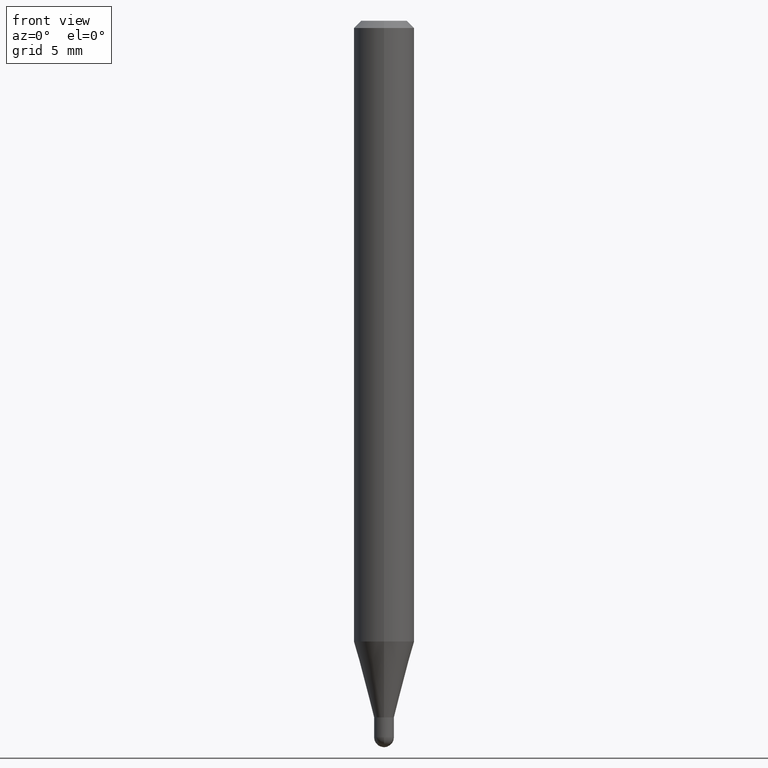
[diagram: clean part render]
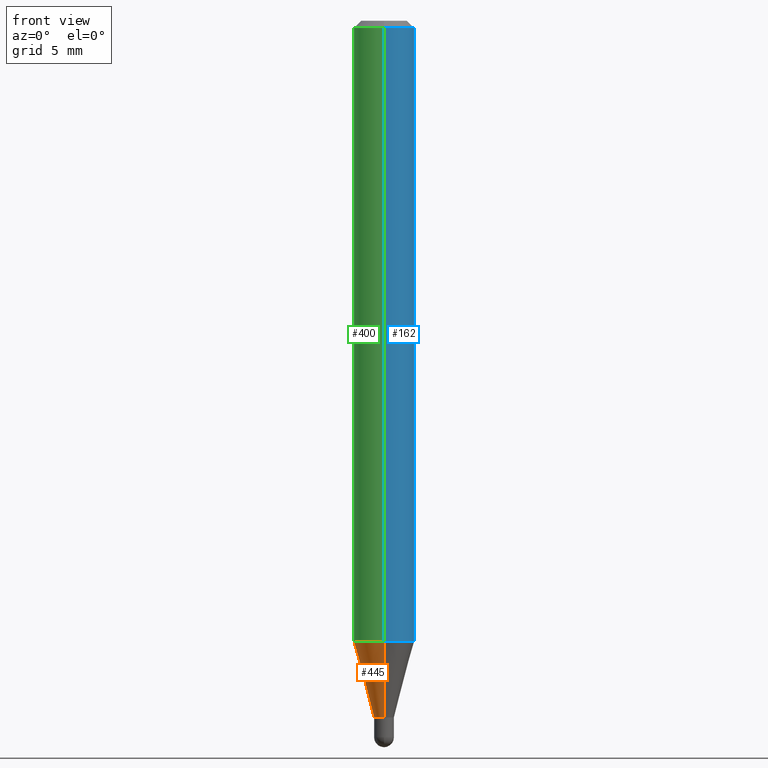
[diagram: same view with three faces highlighted in distinct colors, each labeled with its STEP entity id]
A machine part, front view with three faces highlighted in distinct colors.
Their STEP definitions:

[orange] entity #445 — the highlighted conical surface has half-angle 15 deg.
#4 = CARTESIAN_POINT ( 'NONE',  ( -1.431507348925308261E-16, -0.02050000000000467074, -1.438500000000000334 ) ) ;
#16 = EDGE_CURVE ( 'NONE', #264, #310, #357, .T. ) ;
#26 = VECTOR ( 'NONE', #317, 39.37007874015748143 ) ;
#30 = FACE_OUTER_BOUND ( 'NONE', #495, .T. ) ;
#46 = LINE ( 'NONE', #4, #486 ) ;
#48 = AXIS2_PLACEMENT_3D ( 'NONE', #155, #276, #312 ) ;
#73 = CARTESIAN_POINT ( 'NONE',  ( -4.364351673553604601E-16, -0.06250000000000449640, -1.281753866082110838 ) ) ;
#130 = CARTESIAN_POINT ( 'NONE',  ( 2.948752353404736400E-16, 0.02049999999999462322, -1.438500000000000334 ) ) ;
#149 = CARTESIAN_POINT ( 'NONE',  ( 1.456612608308531833E-16, 0.02049999999999462322, -1.438500000000000334 ) ) ;
#155 = CARTESIAN_POINT ( 'NONE',  ( 3.134478573707413274E-29, -4.475234773955820986E-15, -1.281753866082111060 ) ) ;
#156 = EDGE_CURVE ( 'NONE', #310, #341, #288, .T. ) ;
#157 = DIRECTION ( 'NONE',  ( -2.445460596337778578E-29, 3.491493095811837758E-15, 1.000000000000000000 ) ) ;
#163 = DIRECTION ( 'NONE',  ( -1.807323732225378654E-15, -0.2588190451025251249, 0.9659258262890670910 ) ) ;
#180 = ORIENTED_EDGE ( 'NONE', *, *, #183, .T. ) ;
#183 = EDGE_CURVE ( 'NONE', #339, #341, #46, .T. ) ;
#192 = CARTESIAN_POINT ( 'NONE',  ( 3.517795067831895441E-29, -5.022512818325329476E-15, -1.438500000000000334 ) ) ;
#200 = ORIENTED_EDGE ( 'NONE', *, *, #156, .F. ) ;
#260 = DIRECTION ( 'NONE',  ( -6.982962677686266711E-15, -1.000000000000000000, 0.000000000000000000 ) ) ;
#264 = VERTEX_POINT ( 'NONE', #130 ) ;
#276 = DIRECTION ( 'NONE',  ( -2.445460596337778578E-29, 3.491493095811837758E-15, 1.000000000000000000 ) ) ;
#288 = CIRCLE ( 'NONE', #48, 0.06250000000000000000 ) ;
#298 = ORIENTED_EDGE ( 'NONE', *, *, #16, .F. ) ;
#301 = ORIENTED_EDGE ( 'NONE', *, *, #505, .T. ) ;
#310 = VERTEX_POINT ( 'NONE', #483 ) ;
#312 = DIRECTION ( 'NONE',  ( -6.982962677686265922E-15, -1.000000000000000000, 4.370956789862821150E-15 ) ) ;
#317 = DIRECTION ( 'NONE',  ( 1.839019923739649619E-15, 0.2588190451025318972, 0.9659258262890653146 ) ) ;
#319 = CONICAL_SURFACE ( 'NONE', #438, 0.02049999999999964698, 0.2617993877991574569 ) ;
#339 = VERTEX_POINT ( 'NONE', #340 ) ;
#340 = CARTESIAN_POINT ( 'NONE',  ( -1.431507348925308261E-16, -0.02050000000000467074, -1.438500000000000334 ) ) ;
#341 = VERTEX_POINT ( 'NONE', #73 ) ;
#353 = AXIS2_PLACEMENT_3D ( 'NONE', #192, #157, #428 ) ;
#357 = LINE ( 'NONE', #149, #26 ) ;
#376 = CARTESIAN_POINT ( 'NONE',  ( 3.517795067831895441E-29, -5.022512818325329476E-15, -1.438500000000000334 ) ) ;
#380 = DIRECTION ( 'NONE',  ( -2.445460596337778578E-29, 3.491493095811837758E-15, 1.000000000000000000 ) ) ;
#428 = DIRECTION ( 'NONE',  ( -6.982962677686266711E-15, -1.000000000000000000, 0.000000000000000000 ) ) ;
#438 = AXIS2_PLACEMENT_3D ( 'NONE', #376, #380, #260 ) ;
#445 = ADVANCED_FACE ( 'NONE', ( #30 ), #319, .T. ) ;
#478 = CIRCLE ( 'NONE', #353, 0.02049999999999964698 ) ;
#483 = CARTESIAN_POINT ( 'NONE',  ( 4.440892098500937762E-16, 0.06249999999999551054, -1.281753866082111282 ) ) ;
#486 = VECTOR ( 'NONE', #163, 39.37007874015748854 ) ;
#495 = EDGE_LOOP ( 'NONE', ( #298, #301, #180, #200 ) ) ;
#505 = EDGE_CURVE ( 'NONE', #264, #339, #478, .T. ) ;

[blue] entity #162 — the highlighted cylindrical surface (edge-blend (fillet) strip) has radius 1.5875 mm, axis along (-0, 0, 1).
#7 = EDGE_CURVE ( 'NONE', #341, #164, #79, .T. ) ;
#29 = EDGE_CURVE ( 'NONE', #310, #184, #84, .T. ) ;
#73 = CARTESIAN_POINT ( 'NONE',  ( -4.364351673553604601E-16, -0.06250000000000449640, -1.281753866082110838 ) ) ;
#79 = LINE ( 'NONE', #158, #250 ) ;
#84 = LINE ( 'NONE', #470, #131 ) ;
#93 = DIRECTION ( 'NONE',  ( -2.445460596337778578E-29, 3.491493095811837758E-15, 1.000000000000000000 ) ) ;
#122 = CARTESIAN_POINT ( 'NONE',  ( 4.440892098500940720E-16, 0.06249999999999993755, -0.01500000000000028394 ) ) ;
#128 = CARTESIAN_POINT ( 'NONE',  ( 3.134478573707413274E-29, -4.475234773955820986E-15, -1.281753866082111060 ) ) ;
#131 = VECTOR ( 'NONE', #234, 39.37007874015748143 ) ;
#158 = CARTESIAN_POINT ( 'NONE',  ( -4.364351673553916201E-16, -0.06250000000000000000, 2.182183184882398598E-16 ) ) ;
#162 = ADVANCED_FACE ( 'NONE', ( #433 ), #239, .T. ) ;
#164 = VERTEX_POINT ( 'NONE', #394 ) ;
#184 = VERTEX_POINT ( 'NONE', #122 ) ;
#187 = CIRCLE ( 'NONE', #363, 0.06250000000000000000 ) ;
#202 = DIRECTION ( 'NONE',  ( -2.445460596337778578E-29, 3.491493095811837758E-15, 1.000000000000000000 ) ) ;
#208 = DIRECTION ( 'NONE',  ( -6.982962677686265922E-15, -1.000000000000000000, 3.491493095811837758E-15 ) ) ;
#214 = CIRCLE ( 'NONE', #343, 0.06250000000000000000 ) ;
#234 = DIRECTION ( 'NONE',  ( -2.445460596337778578E-29, 3.491493095811837758E-15, 1.000000000000000000 ) ) ;
#239 = CYLINDRICAL_SURFACE ( 'NONE', #501, 0.06250000000000000000 ) ;
#249 = EDGE_CURVE ( 'NONE', #341, #310, #214, .T. ) ;
#250 = VECTOR ( 'NONE', #202, 39.37007874015748143 ) ;
#263 = CARTESIAN_POINT ( 'NONE',  ( 3.668190894506684298E-31, -5.237239643717779809E-17, -0.01500000000000006710 ) ) ;
#302 = DIRECTION ( 'NONE',  ( -6.982962677686265922E-15, -1.000000000000000000, 3.483106191921935554E-15 ) ) ;
#310 = VERTEX_POINT ( 'NONE', #483 ) ;
#341 = VERTEX_POINT ( 'NONE', #73 ) ;
#343 = AXIS2_PLACEMENT_3D ( 'NONE', #128, #93, #444 ) ;
#350 = ORIENTED_EDGE ( 'NONE', *, *, #249, .T. ) ;
#363 = AXIS2_PLACEMENT_3D ( 'NONE', #263, #418, #302 ) ;
#381 = ORIENTED_EDGE ( 'NONE', *, *, #29, .T. ) ;
#394 = CARTESIAN_POINT ( 'NONE',  ( -4.364351673553912750E-16, -0.06250000000000005551, -0.01499999999999984852 ) ) ;
#418 = DIRECTION ( 'NONE',  ( -2.445460596337778578E-29, 3.491493095811837758E-15, 1.000000000000000000 ) ) ;
#430 = DIRECTION ( 'NONE',  ( -2.445460596337778578E-29, 3.491493095811837758E-15, 1.000000000000000000 ) ) ;
#433 = FACE_OUTER_BOUND ( 'NONE', #500, .T. ) ;
#444 = DIRECTION ( 'NONE',  ( -6.982962677686265922E-15, -1.000000000000000000, 4.370956789862821150E-15 ) ) ;
#453 = EDGE_CURVE ( 'NONE', #164, #184, #187, .T. ) ;
#459 = ORIENTED_EDGE ( 'NONE', *, *, #453, .F. ) ;
#467 = CARTESIAN_POINT ( 'NONE',  ( 0.000000000000000000, 0.000000000000000000, 0.000000000000000000 ) ) ;
#470 = CARTESIAN_POINT ( 'NONE',  ( 4.440892098500625669E-16, 0.06250000000000000000, -2.182183184882398598E-16 ) ) ;
#483 = CARTESIAN_POINT ( 'NONE',  ( 4.440892098500937762E-16, 0.06249999999999551054, -1.281753866082111282 ) ) ;
#493 = ORIENTED_EDGE ( 'NONE', *, *, #7, .F. ) ;
#500 = EDGE_LOOP ( 'NONE', ( #350, #381, #459, #493 ) ) ;
#501 = AXIS2_PLACEMENT_3D ( 'NONE', #467, #430, #208 ) ;

[green] entity #400 — the highlighted cylindrical surface (edge-blend (fillet) strip) has radius 1.5875 mm, axis along (-0, 0, 1).
#7 = EDGE_CURVE ( 'NONE', #341, #164, #79, .T. ) ;
#22 = FACE_OUTER_BOUND ( 'NONE', #88, .T. ) ;
#29 = EDGE_CURVE ( 'NONE', #310, #184, #84, .T. ) ;
#41 = ORIENTED_EDGE ( 'NONE', *, *, #29, .F. ) ;
#42 = ORIENTED_EDGE ( 'NONE', *, *, #7, .T. ) ;
#48 = AXIS2_PLACEMENT_3D ( 'NONE', #155, #276, #312 ) ;
#70 = DIRECTION ( 'NONE',  ( -6.982962677686265922E-15, -1.000000000000000000, 3.491493095811837758E-15 ) ) ;
#73 = CARTESIAN_POINT ( 'NONE',  ( -4.364351673553604601E-16, -0.06250000000000449640, -1.281753866082110838 ) ) ;
#79 = LINE ( 'NONE', #158, #250 ) ;
#84 = LINE ( 'NONE', #470, #131 ) ;
#88 = EDGE_LOOP ( 'NONE', ( #41, #195, #42, #313 ) ) ;
#122 = CARTESIAN_POINT ( 'NONE',  ( 4.440892098500940720E-16, 0.06249999999999993755, -0.01500000000000028394 ) ) ;
#131 = VECTOR ( 'NONE', #234, 39.37007874015748143 ) ;
#140 = DIRECTION ( 'NONE',  ( -2.445460596337778578E-29, 3.491493095811837758E-15, 1.000000000000000000 ) ) ;
#155 = CARTESIAN_POINT ( 'NONE',  ( 3.134478573707413274E-29, -4.475234773955820986E-15, -1.281753866082111060 ) ) ;
#156 = EDGE_CURVE ( 'NONE', #310, #341, #288, .T. ) ;
#158 = CARTESIAN_POINT ( 'NONE',  ( -4.364351673553916201E-16, -0.06250000000000000000, 2.182183184882398598E-16 ) ) ;
#164 = VERTEX_POINT ( 'NONE', #394 ) ;
#181 = CYLINDRICAL_SURFACE ( 'NONE', #382, 0.06250000000000000000 ) ;
#184 = VERTEX_POINT ( 'NONE', #122 ) ;
#195 = ORIENTED_EDGE ( 'NONE', *, *, #156, .T. ) ;
#202 = DIRECTION ( 'NONE',  ( -2.445460596337778578E-29, 3.491493095811837758E-15, 1.000000000000000000 ) ) ;
#234 = DIRECTION ( 'NONE',  ( -2.445460596337778578E-29, 3.491493095811837758E-15, 1.000000000000000000 ) ) ;
#250 = VECTOR ( 'NONE', #202, 39.37007874015748143 ) ;
#276 = DIRECTION ( 'NONE',  ( -2.445460596337778578E-29, 3.491493095811837758E-15, 1.000000000000000000 ) ) ;
#288 = CIRCLE ( 'NONE', #48, 0.06250000000000000000 ) ;
#289 = AXIS2_PLACEMENT_3D ( 'NONE', #494, #140, #414 ) ;
#300 = DIRECTION ( 'NONE',  ( -2.445460596337778578E-29, 3.491493095811837758E-15, 1.000000000000000000 ) ) ;
#310 = VERTEX_POINT ( 'NONE', #483 ) ;
#312 = DIRECTION ( 'NONE',  ( -6.982962677686265922E-15, -1.000000000000000000, 4.370956789862821150E-15 ) ) ;
#313 = ORIENTED_EDGE ( 'NONE', *, *, #342, .F. ) ;
#327 = CIRCLE ( 'NONE', #289, 0.06250000000000000000 ) ;
#341 = VERTEX_POINT ( 'NONE', #73 ) ;
#342 = EDGE_CURVE ( 'NONE', #184, #164, #327, .T. ) ;
#382 = AXIS2_PLACEMENT_3D ( 'NONE', #497, #300, #70 ) ;
#394 = CARTESIAN_POINT ( 'NONE',  ( -4.364351673553912750E-16, -0.06250000000000005551, -0.01499999999999984852 ) ) ;
#400 = ADVANCED_FACE ( 'NONE', ( #22 ), #181, .T. ) ;
#414 = DIRECTION ( 'NONE',  ( -6.982962677686265922E-15, -1.000000000000000000, 3.483106191921935554E-15 ) ) ;
#470 = CARTESIAN_POINT ( 'NONE',  ( 4.440892098500625669E-16, 0.06250000000000000000, -2.182183184882398598E-16 ) ) ;
#483 = CARTESIAN_POINT ( 'NONE',  ( 4.440892098500937762E-16, 0.06249999999999551054, -1.281753866082111282 ) ) ;
#494 = CARTESIAN_POINT ( 'NONE',  ( 3.668190894506684298E-31, -5.237239643717779809E-17, -0.01500000000000006710 ) ) ;
#497 = CARTESIAN_POINT ( 'NONE',  ( 0.000000000000000000, 0.000000000000000000, 0.000000000000000000 ) ) ;